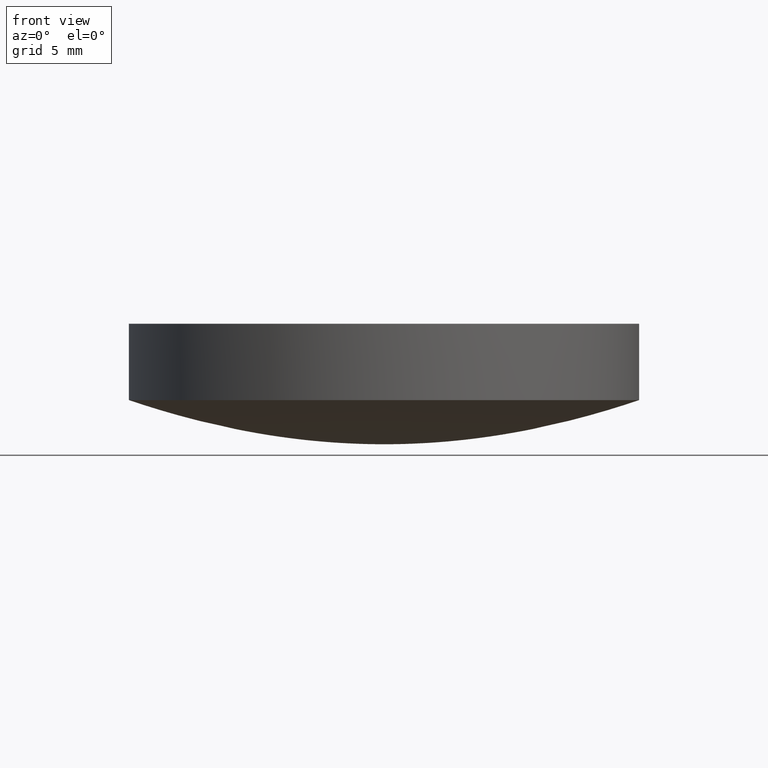
[diagram: clean part render]
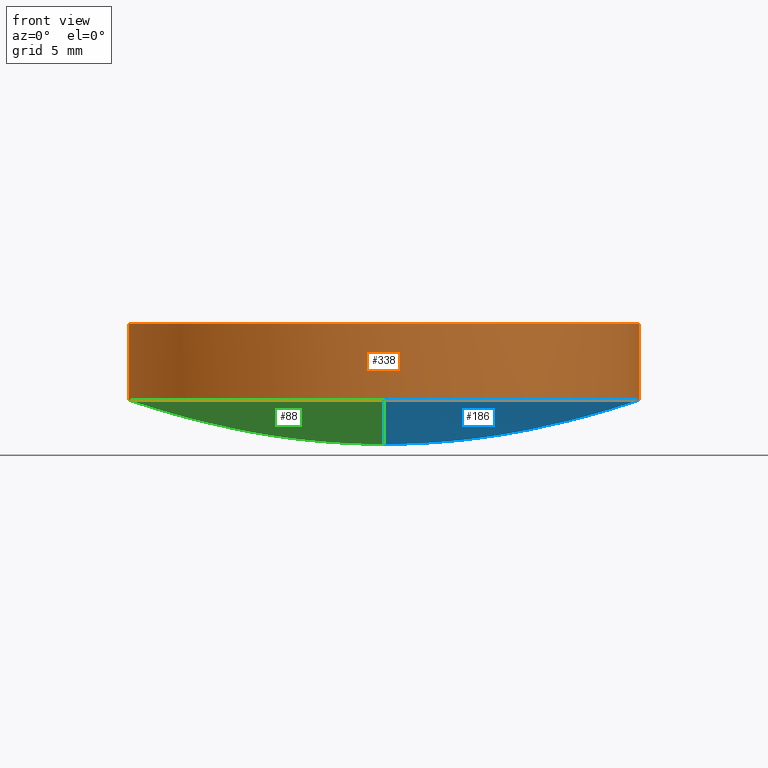
[diagram: same view with three faces highlighted in distinct colors, each labeled with its STEP entity id]
A machine part, front view with three faces highlighted in distinct colors.
Their STEP definitions:

[orange] entity #338 — the highlighted cylindrical surface (partial cylindrical patch) has radius 12.7 mm, axis along (0, 0, 1).
#44 = VERTEX_POINT ( 'NONE', #263 ) ;
#52 = CARTESIAN_POINT ( 'NONE',  ( 1.734723475976807094E-15, -1.345898117247522881E-15, 2.197451818612039975 ) ) ;
#53 = CARTESIAN_POINT ( 'NONE',  ( 12.70000000000000107, -8.881784197001250351E-16, 2.197451818612039087 ) ) ;
#62 = DIRECTION ( 'NONE',  ( 6.993530863780509846E-17, 4.890947394265059749E-33, 1.000000000000000000 ) ) ;
#73 = EDGE_CURVE ( 'NONE', #219, #216, #447, .T. ) ;
#75 = ORIENTED_EDGE ( 'NONE', *, *, #424, .T. ) ;
#117 = CARTESIAN_POINT ( 'NONE',  ( -1.555301434917141588E-15, -12.70000000000000462, 2.197451818612039975 ) ) ;
#120 = VECTOR ( 'NONE', #389, 1000.000000000000000 ) ;
#146 = LINE ( 'NONE', #53, #120 ) ;
#157 = VERTEX_POINT ( 'NONE', #350 ) ;
#167 = EDGE_CURVE ( 'NONE', #227, #157, #268, .T. ) ;
#176 = CARTESIAN_POINT ( 'NONE',  ( 8.881784197001250351E-16, -8.881784197001250351E-16, 2.197451818612039975 ) ) ;
#182 = VECTOR ( 'NONE', #62, 1000.000000000000000 ) ;
#216 = VERTEX_POINT ( 'NONE', #503 ) ;
#218 = DIRECTION ( 'NONE',  ( 1.000000000000000000, 0.000000000000000000, -6.829619984160658046E-17 ) ) ;
#219 = VERTEX_POINT ( 'NONE', #117 ) ;
#220 = AXIS2_PLACEMENT_3D ( 'NONE', #176, #277, #274 ) ;
#225 = DIRECTION ( 'NONE',  ( -0.000000000000000000, -0.000000000000000000, -1.000000000000000000 ) ) ;
#227 = VERTEX_POINT ( 'NONE', #357 ) ;
#240 = AXIS2_PLACEMENT_3D ( 'NONE', #308, #257, #218 ) ;
#257 = DIRECTION ( 'NONE',  ( -6.993530863780509846E-17, -4.890947394265059749E-33, -1.000000000000000000 ) ) ;
#263 = CARTESIAN_POINT ( 'NONE',  ( 12.70000000000000462, -8.881784197001248379E-16, 2.197451818612039975 ) ) ;
#264 = CARTESIAN_POINT ( 'NONE',  ( 1.734723475976807094E-15, -1.345898117247522881E-15, 2.197451818612039975 ) ) ;
#267 = LINE ( 'NONE', #438, #182 ) ;
#268 = CIRCLE ( 'NONE', #240, 12.69999999999999929 ) ;
#274 = DIRECTION ( 'NONE',  ( 1.000000000000000000, 0.000000000000000000, -6.829619984160658046E-17 ) ) ;
#277 = DIRECTION ( 'NONE',  ( 6.993530863780509846E-17, 4.890947394265059749E-33, 1.000000000000000000 ) ) ;
#289 = EDGE_LOOP ( 'NONE', ( #497, #416, #505, #75, #472 ) ) ;
#307 = CYLINDRICAL_SURFACE ( 'NONE', #220, 12.69999999999999929 ) ;
#308 = CARTESIAN_POINT ( 'NONE',  ( 1.154110800375616501E-15, -8.881784197001250351E-16, 5.999999999999999112 ) ) ;
#310 = FACE_OUTER_BOUND ( 'NONE', #289, .T. ) ;
#320 = AXIS2_PLACEMENT_3D ( 'NONE', #52, #476, #391 ) ;
#337 = AXIS2_PLACEMENT_3D ( 'NONE', #264, #225, #430 ) ;
#338 = ADVANCED_FACE ( 'NONE', ( #310 ), #307, .T. ) ;
#350 = CARTESIAN_POINT ( 'NONE',  ( -12.69999999999999751, 6.671230152170134961E-16, 6.000000000000000000 ) ) ;
#357 = CARTESIAN_POINT ( 'NONE',  ( 12.70000000000000107, -8.881784197001250351E-16, 5.999999999999998224 ) ) ;
#384 = EDGE_CURVE ( 'NONE', #44, #219, #421, .T. ) ;
#389 = DIRECTION ( 'NONE',  ( 6.993530863780509846E-17, 4.890947394265059749E-33, 1.000000000000000000 ) ) ;
#391 = DIRECTION ( 'NONE',  ( -1.000000000000000000, 0.000000000000000000, 0.000000000000000000 ) ) ;
#407 = EDGE_CURVE ( 'NONE', #216, #157, #267, .T. ) ;
#416 = ORIENTED_EDGE ( 'NONE', *, *, #73, .F. ) ;
#421 = CIRCLE ( 'NONE', #337, 12.70000000000000284 ) ;
#424 = EDGE_CURVE ( 'NONE', #44, #227, #146, .T. ) ;
#430 = DIRECTION ( 'NONE',  ( -1.000000000000000000, 0.000000000000000000, 0.000000000000000000 ) ) ;
#438 = CARTESIAN_POINT ( 'NONE',  ( -12.69999999999999751, 6.671230152170134961E-16, 2.197451818612040864 ) ) ;
#447 = CIRCLE ( 'NONE', #320, 12.70000000000000284 ) ;
#472 = ORIENTED_EDGE ( 'NONE', *, *, #167, .T. ) ;
#476 = DIRECTION ( 'NONE',  ( -0.000000000000000000, -0.000000000000000000, -1.000000000000000000 ) ) ;
#497 = ORIENTED_EDGE ( 'NONE', *, *, #407, .F. ) ;
#503 = CARTESIAN_POINT ( 'NONE',  ( -12.70000000000000107, 6.671230152170136933E-16, 2.197451818612039975 ) ) ;
#505 = ORIENTED_EDGE ( 'NONE', *, *, #384, .F. ) ;

[blue] entity #186 — the highlighted face is a freeform B-spline surface patch.
#2 = CARTESIAN_POINT ( 'NONE',  ( -0.2646482014919789849, 1.620502864286280123E-17, 0.000000000000000000 ) ) ;
#4 = CARTESIAN_POINT ( 'NONE',  ( 0.9709166173007770517, -0.9709166173007780509, 0.007826623216660751406 ) ) ;
#5 = EDGE_CURVE ( 'NONE', #219, #155, #123, .T. ) ;
#7 = CARTESIAN_POINT ( 'NONE',  ( -1.853068808560519809, 1.853068808560519809, 0.04368035160071269407 ) ) ;
#8 = CARTESIAN_POINT ( 'NONE',  ( -11.12050896531349942, 11.12050896531349942, 1.686076382450860001 ) ) ;
#9 = ORIENTED_EDGE ( 'NONE', *, *, #5, .T. ) ;
#11 = CARTESIAN_POINT ( 'NONE',  ( 0.000000000000000000, 9.881579680847279334, 1.340326071960550092 ) ) ;
#12 = CARTESIAN_POINT ( 'NONE',  ( -5.402905364136339613E-16, -4.411807035218689776, 0.2678392450587179785 ) ) ;
#13 = CARTESIAN_POINT ( 'NONE',  ( 0.000000000000000000, 1.853068808560520031, 0.04368035160071270101 ) ) ;
#15 = CARTESIAN_POINT ( 'NONE',  ( -1.210144492666909909E-15, -9.881579680847279334, 1.340326071960550092 ) ) ;
#17 = DIRECTION ( 'NONE',  ( -1.000000000000000000, 0.000000000000000000, 0.000000000000000000 ) ) ;
#18 = CARTESIAN_POINT ( 'NONE',  ( -9.881579680847279334, 6.050722463334570254E-16, 1.340326071960550092 ) ) ;
#19 = CARTESIAN_POINT ( 'NONE',  ( -1.189029927616370324E-16, -0.9709166173007780509, 0.007826623216660749671 ) ) ;
#20 = CARTESIAN_POINT ( 'NONE',  ( 0.000000000000000000, 4.411807035218689776, 0.2678392450587179785 ) ) ;
#21 = CARTESIAN_POINT ( 'NONE',  ( 11.12050896531349942, 11.12050896531349942, 1.686076382450860001 ) ) ;
#23 = CARTESIAN_POINT ( 'NONE',  ( -9.292616622705699954E-16, -7.587997314144440786, 0.7937850246568419754 ) ) ;
#27 = DIRECTION ( 'NONE',  ( -0.000000000000000000, -0.000000000000000000, -1.000000000000000000 ) ) ;
#32 = CARTESIAN_POINT ( 'NONE',  ( 0.000000000000000000, 5.999939165251210405, 0.4967461427249240669 ) ) ;
#34 = CARTESIAN_POINT ( 'NONE',  ( -5.117495180305819957, 5.117495180305819957, 0.3610946254766859709 ) ) ;
#36 = CARTESIAN_POINT ( 'NONE',  ( 5.117495180305819957, 5.117495180305819957, 0.3610946254766859709 ) ) ;
#39 = CARTESIAN_POINT ( 'NONE',  ( -0.9709166173007780509, -0.9709166173007770517, 0.007826623216660751406 ) ) ;
#41 = CARTESIAN_POINT ( 'NONE',  ( -1.189029927616370324E-16, -0.9709166173007780509, 0.007826623216660749671 ) ) ;
#44 = VERTEX_POINT ( 'NONE', #263 ) ;
#45 = CARTESIAN_POINT ( 'NONE',  ( 0.000000000000000000, 0.000000000000000000, 0.000000000000000000 ) ) ;
#46 = CARTESIAN_POINT ( 'NONE',  ( 0.000000000000000000, 9.175968922900919367, 1.157604965641559902 ) ) ;
#47 = CARTESIAN_POINT ( 'NONE',  ( 0.000000000000000000, 2.823615539499820137, 0.1081007503329499964 ) ) ;
#48 = CARTESIAN_POINT ( 'NONE',  ( 11.12050896531349942, -11.12050896531349942, 1.686076382450860001 ) ) ;
#50 = CARTESIAN_POINT ( 'NONE',  ( 2.823615539499820581, 2.823615539499820581, 0.1081007503329500102 ) ) ;
#51 = CARTESIAN_POINT ( 'NONE',  ( 0.000000000000000000, 8.293636240054830466, 0.9473380225862650938 ) ) ;
#54 = CARTESIAN_POINT ( 'NONE',  ( 8.293636240054830466, -1.523516261201350195E-15, 0.9473380225862650938 ) ) ;
#55 = ORIENTED_EDGE ( 'NONE', *, *, #489, .F. ) ;
#56 = CARTESIAN_POINT ( 'NONE',  ( 0.000000000000000000, 9.881579680847279334, 1.340326071960550092 ) ) ;
#57 = CARTESIAN_POINT ( 'NONE',  ( -12.69999999999999929, -12.69999999999999929, 2.197451818612039975 ) ) ;
#59 = CARTESIAN_POINT ( 'NONE',  ( 0.000000000000000000, 0.9709166173007780509, 0.007826623216660749671 ) ) ;
#60 = CARTESIAN_POINT ( 'NONE',  ( -5.402905364136339613E-16, -4.411807035218689776, 0.2678392450587179785 ) ) ;
#68 = CARTESIAN_POINT ( 'NONE',  ( 0.000000000000000000, 6.705604643652271157, 0.6204309067409240486 ) ) ;
#70 = B_SPLINE_CURVE_WITH_KNOTS ( 'NONE', 3,
 ( #392, #230, #228, #56, #222, #397, #474, #94, #433, #359, #20, #179, #354, #318, #59, #523, #313 ),
 .UNSPECIFIED., .F., .F.,
 ( 4, 1, 1, 1, 1, 1, 1, 1, 1, 1, 1, 1, 1, 1, 4 ),
 ( 0.000000000000000000, 0.1711261176727990052, 0.2135614419187649993, 0.2980152312877710208, 0.3400336964108119919, 0.4237076803100590094, 0.4653631990862669987, 0.5483733313384220320, 0.5897279448143709635, 0.6722051610619159678, 0.7133277638335130399, 0.7954152136409540219, 0.8363800606767990420, 0.9386724538563220310, 1.000000000000000000 ),
 .UNSPECIFIED. ) ;
#71 = CARTESIAN_POINT ( 'NONE',  ( 0.000000000000000000, 5.117495180305819957, 0.3610946254766860264 ) ) ;
#76 = CARTESIAN_POINT ( 'NONE',  ( 0.000000000000000000, 7.587997314144440786, 0.7937850246568419754 ) ) ;
#78 = CARTESIAN_POINT ( 'NONE',  ( 2.823615539499820137, -5.186897598706770001E-16, 0.1081007503329499964 ) ) ;
#80 = CARTESIAN_POINT ( 'NONE',  ( -2.823615539499820581, 2.823615539499820581, 0.1081007503329500102 ) ) ;
#82 = CARTESIAN_POINT ( 'NONE',  ( 0.000000000000000000, 0.2646482014919789849, 0.000000000000000000 ) ) ;
#84 = CARTESIAN_POINT ( 'NONE',  ( -3.529323060183089833, 2.161087094405080064E-16, 0.1705053634074680247 ) ) ;
#85 = CARTESIAN_POINT ( 'NONE',  ( 0.000000000000000000, 11.12050896531350119, 1.686076382450860001 ) ) ;
#86 = CARTESIAN_POINT ( 'NONE',  ( -3.457931732471180000E-16, -2.823615539499820137, 0.1081007503329499964 ) ) ;
#87 = CARTESIAN_POINT ( 'NONE',  ( 0.000000000000000000, 0.000000000000000000, 0.000000000000000000 ) ) ;
#89 = CARTESIAN_POINT ( 'NONE',  ( 9.175968922900919367, -1.685598145575929948E-15, 1.157604965641559902 ) ) ;
#91 = CARTESIAN_POINT ( 'NONE',  ( -3.851859888774471706E-31, 12.70000000000000284, 2.197451818612039975 ) ) ;
#92 = CARTESIAN_POINT ( 'NONE',  ( -1.015677507467560091E-15, -8.293636240054830466, 0.9473380225862650938 ) ) ;
#93 = CARTESIAN_POINT ( 'NONE',  ( -1.361869570926060046E-15, -11.12050896531350119, 1.686076382450860001 ) ) ;
#94 = CARTESIAN_POINT ( 'NONE',  ( 0.000000000000000000, 6.705604643652271157, 0.6204309067409240486 ) ) ;
#95 = CARTESIAN_POINT ( 'NONE',  ( -11.12050896531349942, -11.12050896531349942, 1.686076382450860001 ) ) ;
#98 = CARTESIAN_POINT ( 'NONE',  ( -4.411807035218689776, 4.411807035218689776, 0.2678392450587179230 ) ) ;
#109 = CARTESIAN_POINT ( 'NONE',  ( -5.999939165251210405, 3.673903146901869911E-16, 0.4967461427249240669 ) ) ;
#113 = CARTESIAN_POINT ( 'NONE',  ( 0.000000000000000000, 4.411807035218689776, 0.2678392450587179785 ) ) ;
#117 = CARTESIAN_POINT ( 'NONE',  ( -1.555301434917141588E-15, -12.70000000000000462, 2.197451818612039975 ) ) ;
#122 = CARTESIAN_POINT ( 'NONE',  ( 0.000000000000000000, 3.529323060183089833, 0.1705053634074680247 ) ) ;
#123 = B_SPLINE_CURVE_WITH_KNOTS ( 'NONE', 3,
 ( #520, #383, #93, #170, #388, #514, #273, #432, #266, #224, #12, #478, #86, #260, #19, #356, #142 ),
 .UNSPECIFIED., .F., .F.,
 ( 4, 1, 1, 1, 1, 1, 1, 1, 1, 1, 1, 1, 1, 1, 4 ),
 ( 0.000000000000000000, 0.1711261176727990052, 0.2135614419187649993, 0.2980152312877710208, 0.3400336964108119919, 0.4237076803100590094, 0.4653631990862669987, 0.5483733313384220320, 0.5897279448143709635, 0.6722051610619159678, 0.7133277638335130399, 0.7954152136409540219, 0.8363800606767990420, 0.9386724538563220310, 1.000000000000000000 ),
 .UNSPECIFIED. ) ;
#125 = CARTESIAN_POINT ( 'NONE',  ( -1.853068808560520031, 1.134677392501719920E-16, 0.04368035160071270101 ) ) ;
#127 = CARTESIAN_POINT ( 'NONE',  ( -3.457931732471180000E-16, -2.823615539499820137, 0.1081007503329499964 ) ) ;
#128 = CARTESIAN_POINT ( 'NONE',  ( 12.69999999999999929, -12.69999999999999929, 2.197451818612039975 ) ) ;
#132 = CARTESIAN_POINT ( 'NONE',  ( 0.000000000000000000, 3.529323060183089833, 0.1705053634074680247 ) ) ;
#135 = CARTESIAN_POINT ( 'NONE',  ( -1.361869570926060046E-15, -11.12050896531350119, 1.686076382450860001 ) ) ;
#137 = CARTESIAN_POINT ( 'NONE',  ( -8.293636240054828690, -8.293636240054828690, 0.9473380225862649828 ) ) ;
#139 = CARTESIAN_POINT ( 'NONE',  ( 0.000000000000000000, 7.587997314144440786, 0.7937850246568419754 ) ) ;
#141 = CARTESIAN_POINT ( 'NONE',  ( 0.000000000000000000, 11.12050896531350119, 1.686076382450860001 ) ) ;
#142 = CARTESIAN_POINT ( 'NONE',  ( 0.000000000000000000, 0.000000000000000000, 0.000000000000000000 ) ) ;
#144 = CARTESIAN_POINT ( 'NONE',  ( -6.705604643652271157, 6.705604643652271157, 0.6204309067409240486 ) ) ;
#155 = VERTEX_POINT ( 'NONE', #265 ) ;
#158 = CARTESIAN_POINT ( 'NONE',  ( 0.000000000000000000, 2.823615539499820137, 0.1081007503329499964 ) ) ;
#161 = CARTESIAN_POINT ( 'NONE',  ( 0.000000000000000000, 0.9709166173007780509, 0.007826623216660749671 ) ) ;
#164 = CARTESIAN_POINT ( 'NONE',  ( 0.000000000000000000, 0.2646482014919789849, 0.000000000000000000 ) ) ;
#165 = FACE_OUTER_BOUND ( 'NONE', #502, .T. ) ;
#168 = CARTESIAN_POINT ( 'NONE',  ( 1.853068808560519809, 1.853068808560519809, 0.04368035160071269407 ) ) ;
#169 = CARTESIAN_POINT ( 'NONE',  ( -9.175968922900919367, 5.618660485253100484E-16, 1.157604965641559902 ) ) ;
#170 = CARTESIAN_POINT ( 'NONE',  ( -1.210144492666909909E-15, -9.881579680847279334, 1.340326071960550092 ) ) ;
#174 = CARTESIAN_POINT ( 'NONE',  ( -8.293636240054828690, 8.293636240054828690, 0.9473380225862649828 ) ) ;
#177 = CARTESIAN_POINT ( 'NONE',  ( 8.293636240054828690, 8.293636240054828690, 0.9473380225862649828 ) ) ;
#179 = CARTESIAN_POINT ( 'NONE',  ( 0.000000000000000000, 3.529323060183089833, 0.1705053634074680247 ) ) ;
#180 = CARTESIAN_POINT ( 'NONE',  ( 12.00034429507980072, -2.204427484445339934E-15, 1.961206610540939810 ) ) ;
#183 = CARTESIAN_POINT ( 'NONE',  ( 7.587997314144440786, -7.587997314144440786, 0.7937850246568420864 ) ) ;
#186 = ADVANCED_FACE ( 'NONE', ( #165 ), #233, .T. ) ;
#190 = CARTESIAN_POINT ( 'NONE',  ( 5.999939165251210405, -1.102170944070560086E-15, 0.4967461427249240669 ) ) ;
#194 = CARTESIAN_POINT ( 'NONE',  ( 0.000000000000000000, 6.705604643652271157, 0.6204309067409240486 ) ) ;
#197 = CARTESIAN_POINT ( 'NONE',  ( 5.117495180305819957, -9.400686138320300585E-16, 0.3610946254766860264 ) ) ;
#202 = CARTESIAN_POINT ( 'NONE',  ( 0.000000000000000000, 0.000000000000000000, 0.000000000000000000 ) ) ;
#205 = CARTESIAN_POINT ( 'NONE',  ( -4.322174188810160128E-16, -3.529323060183089833, 0.1705053634074680247 ) ) ;
#207 = CIRCLE ( 'NONE', #482, 12.70000000000000284 ) ;
#210 = CARTESIAN_POINT ( 'NONE',  ( 2.823615539499820581, -2.823615539499820581, 0.1081007503329500102 ) ) ;
#212 = CARTESIAN_POINT ( 'NONE',  ( 12.69999999999999929, -2.332952152375710015E-15, 2.197451818612039975 ) ) ;
#214 = CARTESIAN_POINT ( 'NONE',  ( 0.000000000000000000, 0.9709166173007780509, 0.007826623216660749671 ) ) ;
#215 = CARTESIAN_POINT ( 'NONE',  ( 0.000000000000000000, 9.881579680847279334, 1.340326071960550092 ) ) ;
#217 = CARTESIAN_POINT ( 'NONE',  ( -2.823615539499820137, 1.728965866235590000E-16, 0.1081007503329499964 ) ) ;
#219 = VERTEX_POINT ( 'NONE', #117 ) ;
#222 = CARTESIAN_POINT ( 'NONE',  ( 0.000000000000000000, 9.175968922900919367, 1.157604965641559902 ) ) ;
#223 = CARTESIAN_POINT ( 'NONE',  ( 12.00034429507980072, 12.00034429507980072, 1.961206610540939588 ) ) ;
#224 = CARTESIAN_POINT ( 'NONE',  ( -6.267124092213530108E-16, -5.117495180305819957, 0.3610946254766860264 ) ) ;
#225 = DIRECTION ( 'NONE',  ( -0.000000000000000000, -0.000000000000000000, -1.000000000000000000 ) ) ;
#226 = CARTESIAN_POINT ( 'NONE',  ( -12.00034429507980072, 7.348091614817809970E-16, 1.961206610540939810 ) ) ;
#228 = CARTESIAN_POINT ( 'NONE',  ( 0.000000000000000000, 11.12050896531350119, 1.686076382450860001 ) ) ;
#229 = CARTESIAN_POINT ( 'NONE',  ( 4.411807035218680006, -4.411807035218689776, 0.2678392450587179230 ) ) ;
#230 = CARTESIAN_POINT ( 'NONE',  ( 0.000000000000000000, 12.00034429507980072, 1.961206610540939810 ) ) ;
#233 =( BOUNDED_SURFACE ( )  B_SPLINE_SURFACE ( 3, 2, ( 
 ( #344, #513, #259, #57, #390, #128, #212, #380, #475 ),
 ( #300, #477, #226, #525, #355, #467, #180, #223, #393 ),
 ( #85, #8, #425, #95, #135, #48, #422, #21, #141 ),
 ( #215, #314, #18, #262, #15, #352, #305, #382, #11 ),
 ( #46, #386, #169, #348, #517, #471, #89, #434, #428 ),
 ( #51, #174, #519, #137, #92, #431, #54, #177, #521 ),
 ( #139, #311, #269, #544, #23, #183, #495, #287, #76 ),
 ( #194, #144, #239, #444, #538, #395, #244, #322, #68 ),
 ( #32, #365, #109, #453, #499, #487, #190, #333, #491 ),
 ( #71, #34, #368, #326, #451, #409, #197, #36, #541 ),
 ( #113, #98, #272, #436, #60, #229, #461, #297, #381 ),
 ( #132, #376, #84, #379, #205, #291, #343, #507, #122 ),
 ( #47, #80, #217, #417, #127, #210, #78, #50, #158 ),
 ( #13, #7, #125, #469, #463, #466, #299, #168, #253 ),
 ( #214, #295, #414, #39, #41, #4, #303, #457, #161 ),
 ( #82, #256, #2, #420, #340, #509, #250, #385, #164 ),
 ( #45, #336, #261, #202, #374, #512, #87, #427, #258 ) ),
 .UNSPECIFIED., .F., .T., .T. ) 
 B_SPLINE_SURFACE_WITH_KNOTS ( ( 4, 1, 1, 1, 1, 1, 1, 1, 1, 1, 1, 1, 1, 1, 4 ),
 ( 3, 2, 2, 2, 3 ),
 ( 0.000000000000000000, 0.1711261176727990052, 0.2135614419187649993, 0.2980152312877710208, 0.3400336964108119919, 0.4237076803100590094, 0.4653631990862669987, 0.5483733313384220320, 0.5897279448143709635, 0.6722051610619159678, 0.7133277638335130399, 0.7954152136409540219, 0.8363800606767990420, 0.9386724538563220310, 1.000000000000000000 ),
 ( 0.000000000000000000, 90.00000000000000000, 180.0000000000000000, 270.0000000000000000, 360.0000000000000000 ),
 .UNSPECIFIED. ) 
 GEOMETRIC_REPRESENTATION_ITEM ( )  RATIONAL_B_SPLINE_SURFACE ( (
 ( 1.000000000000000000, 0.7071067811865480168, 1.000000000000000000, 0.7071067811865480168, 1.000000000000000000, 0.7071067811865480168, 1.000000000000000000, 0.7071067811865480168, 1.000000000000000000),
 ( 1.000000000000000000, 0.7071067811865480168, 1.000000000000000000, 0.7071067811865480168, 1.000000000000000000, 0.7071067811865480168, 1.000000000000000000, 0.7071067811865480168, 1.000000000000000000),
 ( 1.000000000000000000, 0.7071067811865480168, 1.000000000000000000, 0.7071067811865480168, 1.000000000000000000, 0.7071067811865480168, 1.000000000000000000, 0.7071067811865480168, 1.000000000000000000),
 ( 1.000000000000000000, 0.7071067811865480168, 1.000000000000000000, 0.7071067811865480168, 1.000000000000000000, 0.7071067811865480168, 1.000000000000000000, 0.7071067811865480168, 1.000000000000000000),
 ( 1.000000000000000000, 0.7071067811865480168, 1.000000000000000000, 0.7071067811865480168, 1.000000000000000000, 0.7071067811865480168, 1.000000000000000000, 0.7071067811865480168, 1.000000000000000000),
 ( 1.000000000000000000, 0.7071067811865480168, 1.000000000000000000, 0.7071067811865480168, 1.000000000000000000, 0.7071067811865480168, 1.000000000000000000, 0.7071067811865480168, 1.000000000000000000),
 ( 1.000000000000000000, 0.7071067811865480168, 1.000000000000000000, 0.7071067811865480168, 1.000000000000000000, 0.7071067811865480168, 1.000000000000000000, 0.7071067811865480168, 1.000000000000000000),
 ( 1.000000000000000000, 0.7071067811865480168, 1.000000000000000000, 0.7071067811865480168, 1.000000000000000000, 0.7071067811865480168, 1.000000000000000000, 0.7071067811865480168, 1.000000000000000000),
 ( 1.000000000000000000, 0.7071067811865480168, 1.000000000000000000, 0.7071067811865480168, 1.000000000000000000, 0.7071067811865480168, 1.000000000000000000, 0.7071067811865480168, 1.000000000000000000),
 ( 1.000000000000000000, 0.7071067811865480168, 1.000000000000000000, 0.7071067811865480168, 1.000000000000000000, 0.7071067811865480168, 1.000000000000000000, 0.7071067811865480168, 1.000000000000000000),
 ( 1.000000000000000000, 0.7071067811865480168, 1.000000000000000000, 0.7071067811865480168, 1.000000000000000000, 0.7071067811865480168, 1.000000000000000000, 0.7071067811865480168, 1.000000000000000000),
 ( 1.000000000000000000, 0.7071067811865480168, 1.000000000000000000, 0.7071067811865480168, 1.000000000000000000, 0.7071067811865480168, 1.000000000000000000, 0.7071067811865480168, 1.000000000000000000),
 ( 1.000000000000000000, 0.7071067811865480168, 1.000000000000000000, 0.7071067811865480168, 1.000000000000000000, 0.7071067811865480168, 1.000000000000000000, 0.7071067811865480168, 1.000000000000000000),
 ( 1.000000000000000000, 0.7071067811865480168, 1.000000000000000000, 0.7071067811865480168, 1.000000000000000000, 0.7071067811865480168, 1.000000000000000000, 0.7071067811865480168, 1.000000000000000000),
 ( 1.000000000000000000, 0.7071067811865480168, 1.000000000000000000, 0.7071067811865480168, 1.000000000000000000, 0.7071067811865480168, 1.000000000000000000, 0.7071067811865480168, 1.000000000000000000),
 ( 1.000000000000000000, 0.7071067811865480168, 1.000000000000000000, 0.7071067811865480168, 1.000000000000000000, 0.7071067811865480168, 1.000000000000000000, 0.7071067811865480168, 1.000000000000000000),
 ( 1.000000000000000000, 0.7071067811865480168, 1.000000000000000000, 0.7071067811865480168, 1.000000000000000000, 0.7071067811865480168, 1.000000000000000000, 0.7071067811865480168, 1.000000000000000000) ) ) 
 REPRESENTATION_ITEM ( '' )  SURFACE ( )  );
#238 = EDGE_CURVE ( 'NONE', #372, #44, #207, .T. ) ;
#239 = CARTESIAN_POINT ( 'NONE',  ( -6.705604643652271157, 4.105998631598190199E-16, 0.6204309067409240486 ) ) ;
#244 = CARTESIAN_POINT ( 'NONE',  ( 6.705604643652271157, -1.231799589479459969E-15, 0.6204309067409240486 ) ) ;
#250 = CARTESIAN_POINT ( 'NONE',  ( 0.2646482014919789849, -4.861508592858829892E-17, 0.000000000000000000 ) ) ;
#253 = CARTESIAN_POINT ( 'NONE',  ( 0.000000000000000000, 1.853068808560520031, 0.04368035160071270101 ) ) ;
#256 = CARTESIAN_POINT ( 'NONE',  ( -0.2646482014919789294, 0.2646482014919789294, 0.000000000000000000 ) ) ;
#258 = CARTESIAN_POINT ( 'NONE',  ( 0.000000000000000000, 0.000000000000000000, 0.000000000000000000 ) ) ;
#259 = CARTESIAN_POINT ( 'NONE',  ( -12.69999999999999929, 7.776507174585690191E-16, 2.197451818612039975 ) ) ;
#260 = CARTESIAN_POINT ( 'NONE',  ( -2.269354785003439840E-16, -1.853068808560520031, 0.04368035160071270101 ) ) ;
#261 = CARTESIAN_POINT ( 'NONE',  ( 0.000000000000000000, 0.000000000000000000, 0.000000000000000000 ) ) ;
#262 = CARTESIAN_POINT ( 'NONE',  ( -9.881579680847281111, -9.881579680847281111, 1.340326071960550092 ) ) ;
#263 = CARTESIAN_POINT ( 'NONE',  ( 12.70000000000000462, -8.881784197001248379E-16, 2.197451818612039975 ) ) ;
#264 = CARTESIAN_POINT ( 'NONE',  ( 1.734723475976807094E-15, -1.345898117247522881E-15, 2.197451818612039975 ) ) ;
#265 = CARTESIAN_POINT ( 'NONE',  ( 0.000000000000000000, 0.000000000000000000, 0.000000000000000000 ) ) ;
#266 = CARTESIAN_POINT ( 'NONE',  ( -7.347806293803730947E-16, -5.999939165251210405, 0.4967461427249240669 ) ) ;
#269 = CARTESIAN_POINT ( 'NONE',  ( -7.587997314144440786, 4.646308311352849977E-16, 0.7937850246568419754 ) ) ;
#272 = CARTESIAN_POINT ( 'NONE',  ( -4.411807035218689776, 2.701452682068169807E-16, 0.2678392450587179785 ) ) ;
#273 = CARTESIAN_POINT ( 'NONE',  ( -9.292616622705699954E-16, -7.587997314144440786, 0.7937850246568419754 ) ) ;
#287 = CARTESIAN_POINT ( 'NONE',  ( 7.587997314144440786, 7.587997314144440786, 0.7937850246568420864 ) ) ;
#291 = CARTESIAN_POINT ( 'NONE',  ( 3.529323060183090277, -3.529323060183090277, 0.1705053634074679969 ) ) ;
#295 = CARTESIAN_POINT ( 'NONE',  ( -0.9709166173007770517, 0.9709166173007780509, 0.007826623216660751406 ) ) ;
#297 = CARTESIAN_POINT ( 'NONE',  ( 4.411807035218689776, 4.411807035218680006, 0.2678392450587179230 ) ) ;
#299 = CARTESIAN_POINT ( 'NONE',  ( 1.853068808560520031, -3.404032177505150393E-16, 0.04368035160071270101 ) ) ;
#300 = CARTESIAN_POINT ( 'NONE',  ( 0.000000000000000000, 12.00034429507980072, 1.961206610540939810 ) ) ;
#301 = ORIENTED_EDGE ( 'NONE', *, *, #384, .T. ) ;
#303 = CARTESIAN_POINT ( 'NONE',  ( 0.9709166173007780509, -1.783544891424559924E-16, 0.007826623216660749671 ) ) ;
#305 = CARTESIAN_POINT ( 'NONE',  ( 9.881579680847279334, -1.815216739000370189E-15, 1.340326071960550092 ) ) ;
#311 = CARTESIAN_POINT ( 'NONE',  ( -7.587997314144440786, 7.587997314144440786, 0.7937850246568420864 ) ) ;
#313 = CARTESIAN_POINT ( 'NONE',  ( 0.000000000000000000, 0.000000000000000000, 0.000000000000000000 ) ) ;
#314 = CARTESIAN_POINT ( 'NONE',  ( -9.881579680847281111, 9.881579680847281111, 1.340326071960550092 ) ) ;
#318 = CARTESIAN_POINT ( 'NONE',  ( 0.000000000000000000, 1.853068808560520031, 0.04368035160071270101 ) ) ;
#322 = CARTESIAN_POINT ( 'NONE',  ( 6.705604643652271157, 6.705604643652271157, 0.6204309067409240486 ) ) ;
#326 = CARTESIAN_POINT ( 'NONE',  ( -5.117495180305819957, -5.117495180305819957, 0.3610946254766859709 ) ) ;
#333 = CARTESIAN_POINT ( 'NONE',  ( 5.999939165251211293, 5.999939165251200635, 0.4967461427249240669 ) ) ;
#336 = CARTESIAN_POINT ( 'NONE',  ( 0.000000000000000000, 0.000000000000000000, 0.000000000000000000 ) ) ;
#337 = AXIS2_PLACEMENT_3D ( 'NONE', #264, #225, #430 ) ;
#340 = CARTESIAN_POINT ( 'NONE',  ( -3.241005728572560246E-17, -0.2646482014919789849, 0.000000000000000000 ) ) ;
#343 = CARTESIAN_POINT ( 'NONE',  ( 3.529323060183089833, -6.483261283215241177E-16, 0.1705053634074680247 ) ) ;
#344 = CARTESIAN_POINT ( 'NONE',  ( 0.000000000000000000, 12.69999999999999929, 2.197451818612039975 ) ) ;
#348 = CARTESIAN_POINT ( 'NONE',  ( -9.175968922900919367, -9.175968922900919367, 1.157604965641559902 ) ) ;
#352 = CARTESIAN_POINT ( 'NONE',  ( 9.881579680847281111, -9.881579680847281111, 1.340326071960550092 ) ) ;
#354 = CARTESIAN_POINT ( 'NONE',  ( 0.000000000000000000, 2.823615539499820137, 0.1081007503329499964 ) ) ;
#355 = CARTESIAN_POINT ( 'NONE',  ( -1.469618322963560219E-15, -12.00034429507980072, 1.961206610540939810 ) ) ;
#356 = CARTESIAN_POINT ( 'NONE',  ( -3.241005728572560246E-17, -0.2646482014919789849, 0.000000000000000000 ) ) ;
#359 = CARTESIAN_POINT ( 'NONE',  ( 0.000000000000000000, 5.117495180305819957, 0.3610946254766860264 ) ) ;
#365 = CARTESIAN_POINT ( 'NONE',  ( -5.999939165251211293, 5.999939165251211293, 0.4967461427249240669 ) ) ;
#368 = CARTESIAN_POINT ( 'NONE',  ( -5.117495180305819957, 3.133562046106770477E-16, 0.3610946254766860264 ) ) ;
#372 = VERTEX_POINT ( 'NONE', #91 ) ;
#374 = CARTESIAN_POINT ( 'NONE',  ( 0.000000000000000000, 0.000000000000000000, 0.000000000000000000 ) ) ;
#376 = CARTESIAN_POINT ( 'NONE',  ( -3.529323060183090277, 3.529323060183090277, 0.1705053634074679969 ) ) ;
#379 = CARTESIAN_POINT ( 'NONE',  ( -3.529323060183090277, -3.529323060183090277, 0.1705053634074679969 ) ) ;
#380 = CARTESIAN_POINT ( 'NONE',  ( 12.69999999999999929, 12.69999999999999929, 2.197451818612039975 ) ) ;
#381 = CARTESIAN_POINT ( 'NONE',  ( 0.000000000000000000, 4.411807035218689776, 0.2678392450587179785 ) ) ;
#382 = CARTESIAN_POINT ( 'NONE',  ( 9.881579680847281111, 9.881579680847281111, 1.340326071960550092 ) ) ;
#383 = CARTESIAN_POINT ( 'NONE',  ( -1.469618322963560219E-15, -12.00034429507980072, 1.961206610540939810 ) ) ;
#384 = EDGE_CURVE ( 'NONE', #44, #219, #421, .T. ) ;
#385 = CARTESIAN_POINT ( 'NONE',  ( 0.2646482014919789294, 0.2646482014919789294, 0.000000000000000000 ) ) ;
#386 = CARTESIAN_POINT ( 'NONE',  ( -9.175968922900919367, 9.175968922900919367, 1.157604965641559902 ) ) ;
#388 = CARTESIAN_POINT ( 'NONE',  ( -1.123732097050620097E-15, -9.175968922900919367, 1.157604965641559902 ) ) ;
#390 = CARTESIAN_POINT ( 'NONE',  ( -1.555301434917140010E-15, -12.69999999999999929, 2.197451818612039975 ) ) ;
#392 = CARTESIAN_POINT ( 'NONE',  ( -3.851859888774471706E-31, 12.70000000000000284, 2.197451818612039975 ) ) ;
#393 = CARTESIAN_POINT ( 'NONE',  ( 0.000000000000000000, 12.00034429507980072, 1.961206610540939810 ) ) ;
#395 = CARTESIAN_POINT ( 'NONE',  ( 6.705604643652271157, -6.705604643652271157, 0.6204309067409240486 ) ) ;
#397 = CARTESIAN_POINT ( 'NONE',  ( 0.000000000000000000, 8.293636240054830466, 0.9473380225862650938 ) ) ;
#399 = CARTESIAN_POINT ( 'NONE',  ( 1.734723475976807094E-15, -1.345898117247522881E-15, 2.197451818612039975 ) ) ;
#409 = CARTESIAN_POINT ( 'NONE',  ( 5.117495180305819957, -5.117495180305819957, 0.3610946254766859709 ) ) ;
#414 = CARTESIAN_POINT ( 'NONE',  ( -0.9709166173007780509, 5.945149638081860249E-17, 0.007826623216660749671 ) ) ;
#417 = CARTESIAN_POINT ( 'NONE',  ( -2.823615539499820581, -2.823615539499820581, 0.1081007503329500102 ) ) ;
#420 = CARTESIAN_POINT ( 'NONE',  ( -0.2646482014919789294, -0.2646482014919789294, 0.000000000000000000 ) ) ;
#421 = CIRCLE ( 'NONE', #337, 12.70000000000000284 ) ;
#422 = CARTESIAN_POINT ( 'NONE',  ( 11.12050896531350119, -2.042804356389100028E-15, 1.686076382450860001 ) ) ;
#425 = CARTESIAN_POINT ( 'NONE',  ( -11.12050896531350119, 6.809347854630319951E-16, 1.686076382450860001 ) ) ;
#427 = CARTESIAN_POINT ( 'NONE',  ( 0.000000000000000000, 0.000000000000000000, 0.000000000000000000 ) ) ;
#428 = CARTESIAN_POINT ( 'NONE',  ( 0.000000000000000000, 9.175968922900919367, 1.157604965641559902 ) ) ;
#430 = DIRECTION ( 'NONE',  ( -1.000000000000000000, 0.000000000000000000, 0.000000000000000000 ) ) ;
#431 = CARTESIAN_POINT ( 'NONE',  ( 8.293636240054828690, -8.293636240054828690, 0.9473380225862649828 ) ) ;
#432 = CARTESIAN_POINT ( 'NONE',  ( -8.211997263196380398E-16, -6.705604643652271157, 0.6204309067409240486 ) ) ;
#433 = CARTESIAN_POINT ( 'NONE',  ( 0.000000000000000000, 5.999939165251210405, 0.4967461427249240669 ) ) ;
#434 = CARTESIAN_POINT ( 'NONE',  ( 9.175968922900928249, 9.175968922900919367, 1.157604965641559902 ) ) ;
#436 = CARTESIAN_POINT ( 'NONE',  ( -4.411807035218689776, -4.411807035218680006, 0.2678392450587179230 ) ) ;
#444 = CARTESIAN_POINT ( 'NONE',  ( -6.705604643652271157, -6.705604643652271157, 0.6204309067409240486 ) ) ;
#451 = CARTESIAN_POINT ( 'NONE',  ( -6.267124092213530108E-16, -5.117495180305819957, 0.3610946254766860264 ) ) ;
#453 = CARTESIAN_POINT ( 'NONE',  ( -5.999939165251211293, -5.999939165251200635, 0.4967461427249240669 ) ) ;
#455 = ORIENTED_EDGE ( 'NONE', *, *, #238, .T. ) ;
#457 = CARTESIAN_POINT ( 'NONE',  ( 0.9709166173007780509, 0.9709166173007770517, 0.007826623216660751406 ) ) ;
#461 = CARTESIAN_POINT ( 'NONE',  ( 4.411807035218689776, -8.104358046204509913E-16, 0.2678392450587179785 ) ) ;
#463 = CARTESIAN_POINT ( 'NONE',  ( -2.269354785003439840E-16, -1.853068808560520031, 0.04368035160071270101 ) ) ;
#466 = CARTESIAN_POINT ( 'NONE',  ( 1.853068808560519809, -1.853068808560519809, 0.04368035160071269407 ) ) ;
#467 = CARTESIAN_POINT ( 'NONE',  ( 12.00034429507980072, -12.00034429507980072, 1.961206610540939588 ) ) ;
#469 = CARTESIAN_POINT ( 'NONE',  ( -1.853068808560519809, -1.853068808560519809, 0.04368035160071269407 ) ) ;
#471 = CARTESIAN_POINT ( 'NONE',  ( 9.175968922900919367, -9.175968922900928249, 1.157604965641559902 ) ) ;
#474 = CARTESIAN_POINT ( 'NONE',  ( 0.000000000000000000, 7.587997314144440786, 0.7937850246568419754 ) ) ;
#475 = CARTESIAN_POINT ( 'NONE',  ( 0.000000000000000000, 12.69999999999999929, 2.197451818612039975 ) ) ;
#477 = CARTESIAN_POINT ( 'NONE',  ( -12.00034429507980072, 12.00034429507980072, 1.961206610540939588 ) ) ;
#478 = CARTESIAN_POINT ( 'NONE',  ( -4.322174188810160128E-16, -3.529323060183089833, 0.1705053634074680247 ) ) ;
#482 = AXIS2_PLACEMENT_3D ( 'NONE', #399, #27, #17 ) ;
#487 = CARTESIAN_POINT ( 'NONE',  ( 5.999939165251200635, -5.999939165251211293, 0.4967461427249240669 ) ) ;
#489 = EDGE_CURVE ( 'NONE', #372, #155, #70, .T. ) ;
#491 = CARTESIAN_POINT ( 'NONE',  ( 0.000000000000000000, 5.999939165251210405, 0.4967461427249240669 ) ) ;
#495 = CARTESIAN_POINT ( 'NONE',  ( 7.587997314144440786, -1.393892493405849964E-15, 0.7937850246568419754 ) ) ;
#499 = CARTESIAN_POINT ( 'NONE',  ( -7.347806293803730947E-16, -5.999939165251210405, 0.4967461427249240669 ) ) ;
#502 = EDGE_LOOP ( 'NONE', ( #301, #9, #55, #455 ) ) ;
#507 = CARTESIAN_POINT ( 'NONE',  ( 3.529323060183090277, 3.529323060183090277, 0.1705053634074679969 ) ) ;
#509 = CARTESIAN_POINT ( 'NONE',  ( 0.2646482014919789294, -0.2646482014919789294, 0.000000000000000000 ) ) ;
#512 = CARTESIAN_POINT ( 'NONE',  ( 0.000000000000000000, 0.000000000000000000, 0.000000000000000000 ) ) ;
#513 = CARTESIAN_POINT ( 'NONE',  ( -12.69999999999999929, 12.69999999999999929, 2.197451818612039975 ) ) ;
#514 = CARTESIAN_POINT ( 'NONE',  ( -1.015677507467560091E-15, -8.293636240054830466, 0.9473380225862650938 ) ) ;
#517 = CARTESIAN_POINT ( 'NONE',  ( -1.123732097050620097E-15, -9.175968922900919367, 1.157604965641559902 ) ) ;
#519 = CARTESIAN_POINT ( 'NONE',  ( -8.293636240054830466, 5.078387537337820178E-16, 0.9473380225862650938 ) ) ;
#520 = CARTESIAN_POINT ( 'NONE',  ( -1.555301434917141588E-15, -12.70000000000000462, 2.197451818612039975 ) ) ;
#521 = CARTESIAN_POINT ( 'NONE',  ( 0.000000000000000000, 8.293636240054830466, 0.9473380225862650938 ) ) ;
#523 = CARTESIAN_POINT ( 'NONE',  ( 0.000000000000000000, 0.2646482014919789849, 0.000000000000000000 ) ) ;
#525 = CARTESIAN_POINT ( 'NONE',  ( -12.00034429507980072, -12.00034429507980072, 1.961206610540939588 ) ) ;
#538 = CARTESIAN_POINT ( 'NONE',  ( -8.211997263196380398E-16, -6.705604643652271157, 0.6204309067409240486 ) ) ;
#541 = CARTESIAN_POINT ( 'NONE',  ( 0.000000000000000000, 5.117495180305819957, 0.3610946254766860264 ) ) ;
#544 = CARTESIAN_POINT ( 'NONE',  ( -7.587997314144440786, -7.587997314144440786, 0.7937850246568420864 ) ) ;

[green] entity #88 — the highlighted face is a freeform B-spline surface patch.
#3 = CARTESIAN_POINT ( 'NONE',  ( -0.9709166173007780509, -0.9709166173007770517, 0.007826623216660751406 ) ) ;
#5 = EDGE_CURVE ( 'NONE', #219, #155, #123, .T. ) ;
#6 = CARTESIAN_POINT ( 'NONE',  ( 4.411807035218680006, -4.411807035218689776, 0.2678392450587179230 ) ) ;
#12 = CARTESIAN_POINT ( 'NONE',  ( -5.402905364136339613E-16, -4.411807035218689776, 0.2678392450587179785 ) ) ;
#16 = CARTESIAN_POINT ( 'NONE',  ( -12.69999999999999929, 7.776507174585690191E-16, 2.197451818612039975 ) ) ;
#19 = CARTESIAN_POINT ( 'NONE',  ( -1.189029927616370324E-16, -0.9709166173007780509, 0.007826623216660749671 ) ) ;
#20 = CARTESIAN_POINT ( 'NONE',  ( 0.000000000000000000, 4.411807035218689776, 0.2678392450587179785 ) ) ;
#22 = CARTESIAN_POINT ( 'NONE',  ( -11.12050896531350119, 6.809347854630319951E-16, 1.686076382450860001 ) ) ;
#24 = CARTESIAN_POINT ( 'NONE',  ( 0.000000000000000000, 8.293636240054830466, 0.9473380225862650938 ) ) ;
#25 = DIRECTION ( 'NONE',  ( -1.000000000000000000, 0.000000000000000000, 0.000000000000000000 ) ) ;
#26 = CARTESIAN_POINT ( 'NONE',  ( 9.881579680847281111, -9.881579680847281111, 1.340326071960550092 ) ) ;
#28 = CARTESIAN_POINT ( 'NONE',  ( -8.293636240054828690, 8.293636240054828690, 0.9473380225862649828 ) ) ;
#30 = CARTESIAN_POINT ( 'NONE',  ( -5.117495180305819957, 5.117495180305819957, 0.3610946254766859709 ) ) ;
#33 = CARTESIAN_POINT ( 'NONE',  ( -5.117495180305819957, -5.117495180305819957, 0.3610946254766859709 ) ) ;
#35 = CARTESIAN_POINT ( 'NONE',  ( 0.000000000000000000, 0.000000000000000000, 0.000000000000000000 ) ) ;
#37 = CARTESIAN_POINT ( 'NONE',  ( 0.000000000000000000, 4.411807035218689776, 0.2678392450587179785 ) ) ;
#38 = CARTESIAN_POINT ( 'NONE',  ( 0.000000000000000000, 0.9709166173007780509, 0.007826623216660749671 ) ) ;
#40 = CARTESIAN_POINT ( 'NONE',  ( -1.853068808560519809, 1.853068808560519809, 0.04368035160071269407 ) ) ;
#43 = CARTESIAN_POINT ( 'NONE',  ( 0.000000000000000000, 5.117495180305819957, 0.3610946254766860264 ) ) ;
#49 = FACE_OUTER_BOUND ( 'NONE', #111, .T. ) ;
#52 = CARTESIAN_POINT ( 'NONE',  ( 1.734723475976807094E-15, -1.345898117247522881E-15, 2.197451818612039975 ) ) ;
#56 = CARTESIAN_POINT ( 'NONE',  ( 0.000000000000000000, 9.881579680847279334, 1.340326071960550092 ) ) ;
#58 = CARTESIAN_POINT ( 'NONE',  ( 0.000000000000000000, 12.00034429507980072, 1.961206610540939810 ) ) ;
#59 = CARTESIAN_POINT ( 'NONE',  ( 0.000000000000000000, 0.9709166173007780509, 0.007826623216660749671 ) ) ;
#63 = CARTESIAN_POINT ( 'NONE',  ( 8.293636240054828690, -8.293636240054828690, 0.9473380225862649828 ) ) ;
#64 = CARTESIAN_POINT ( 'NONE',  ( -1.015677507467560091E-15, -8.293636240054830466, 0.9473380225862650938 ) ) ;
#66 = CARTESIAN_POINT ( 'NONE',  ( 0.000000000000000000, 9.881579680847279334, 1.340326071960550092 ) ) ;
#69 = CARTESIAN_POINT ( 'NONE',  ( 5.117495180305819957, -9.400686138320300585E-16, 0.3610946254766860264 ) ) ;
#70 = B_SPLINE_CURVE_WITH_KNOTS ( 'NONE', 3,
 ( #392, #230, #228, #56, #222, #397, #474, #94, #433, #359, #20, #179, #354, #318, #59, #523, #313 ),
 .UNSPECIFIED., .F., .F.,
 ( 4, 1, 1, 1, 1, 1, 1, 1, 1, 1, 1, 1, 1, 1, 4 ),
 ( 0.000000000000000000, 0.1711261176727990052, 0.2135614419187649993, 0.2980152312877710208, 0.3400336964108119919, 0.4237076803100590094, 0.4653631990862669987, 0.5483733313384220320, 0.5897279448143709635, 0.6722051610619159678, 0.7133277638335130399, 0.7954152136409540219, 0.8363800606767990420, 0.9386724538563220310, 1.000000000000000000 ),
 .UNSPECIFIED. ) ;
#72 = CARTESIAN_POINT ( 'NONE',  ( 0.000000000000000000, 7.587997314144440786, 0.7937850246568419754 ) ) ;
#73 = EDGE_CURVE ( 'NONE', #219, #216, #447, .T. ) ;
#74 = CARTESIAN_POINT ( 'NONE',  ( 0.000000000000000000, 0.000000000000000000, 0.000000000000000000 ) ) ;
#77 = CARTESIAN_POINT ( 'NONE',  ( 0.000000000000000000, 3.529323060183089833, 0.1705053634074680247 ) ) ;
#79 = CARTESIAN_POINT ( 'NONE',  ( 0.9709166173007780509, -1.783544891424559924E-16, 0.007826623216660749671 ) ) ;
#81 = CARTESIAN_POINT ( 'NONE',  ( -1.189029927616370324E-16, -0.9709166173007780509, 0.007826623216660749671 ) ) ;
#83 = CARTESIAN_POINT ( 'NONE',  ( 0.000000000000000000, 0.000000000000000000, 0.000000000000000000 ) ) ;
#86 = CARTESIAN_POINT ( 'NONE',  ( -3.457931732471180000E-16, -2.823615539499820137, 0.1081007503329499964 ) ) ;
#88 = ADVANCED_FACE ( 'NONE', ( #49 ), #254, .T. ) ;
#91 = CARTESIAN_POINT ( 'NONE',  ( -3.851859888774471706E-31, 12.70000000000000284, 2.197451818612039975 ) ) ;
#93 = CARTESIAN_POINT ( 'NONE',  ( -1.361869570926060046E-15, -11.12050896531350119, 1.686076382450860001 ) ) ;
#94 = CARTESIAN_POINT ( 'NONE',  ( 0.000000000000000000, 6.705604643652271157, 0.6204309067409240486 ) ) ;
#96 = CARTESIAN_POINT ( 'NONE',  ( -12.69999999999999929, -12.69999999999999929, 2.197451818612039975 ) ) ;
#99 = CARTESIAN_POINT ( 'NONE',  ( -1.361869570926060046E-15, -11.12050896531350119, 1.686076382450860001 ) ) ;
#101 = CARTESIAN_POINT ( 'NONE',  ( -1.210144492666909909E-15, -9.881579680847279334, 1.340326071960550092 ) ) ;
#103 = CARTESIAN_POINT ( 'NONE',  ( 0.000000000000000000, 5.999939165251210405, 0.4967461427249240669 ) ) ;
#104 = CARTESIAN_POINT ( 'NONE',  ( 0.000000000000000000, 6.705604643652271157, 0.6204309067409240486 ) ) ;
#105 = CARTESIAN_POINT ( 'NONE',  ( -9.881579680847281111, 9.881579680847281111, 1.340326071960550092 ) ) ;
#107 = CARTESIAN_POINT ( 'NONE',  ( 9.175968922900928249, 9.175968922900919367, 1.157604965641559902 ) ) ;
#110 = CARTESIAN_POINT ( 'NONE',  ( 0.000000000000000000, 0.2646482014919789849, 0.000000000000000000 ) ) ;
#111 = EDGE_LOOP ( 'NONE', ( #160, #163, #204, #465 ) ) ;
#114 = CARTESIAN_POINT ( 'NONE',  ( -2.823615539499820581, 2.823615539499820581, 0.1081007503329500102 ) ) ;
#117 = CARTESIAN_POINT ( 'NONE',  ( -1.555301434917141588E-15, -12.70000000000000462, 2.197451818612039975 ) ) ;
#119 = CARTESIAN_POINT ( 'NONE',  ( -1.853068808560520031, 1.134677392501719920E-16, 0.04368035160071270101 ) ) ;
#123 = B_SPLINE_CURVE_WITH_KNOTS ( 'NONE', 3,
 ( #520, #383, #93, #170, #388, #514, #273, #432, #266, #224, #12, #478, #86, #260, #19, #356, #142 ),
 .UNSPECIFIED., .F., .F.,
 ( 4, 1, 1, 1, 1, 1, 1, 1, 1, 1, 1, 1, 1, 1, 4 ),
 ( 0.000000000000000000, 0.1711261176727990052, 0.2135614419187649993, 0.2980152312877710208, 0.3400336964108119919, 0.4237076803100590094, 0.4653631990862669987, 0.5483733313384220320, 0.5897279448143709635, 0.6722051610619159678, 0.7133277638335130399, 0.7954152136409540219, 0.8363800606767990420, 0.9386724538563220310, 1.000000000000000000 ),
 .UNSPECIFIED. ) ;
#124 = CARTESIAN_POINT ( 'NONE',  ( 0.9709166173007780509, 0.9709166173007770517, 0.007826623216660751406 ) ) ;
#126 = CARTESIAN_POINT ( 'NONE',  ( 0.000000000000000000, 0.000000000000000000, 0.000000000000000000 ) ) ;
#129 = CARTESIAN_POINT ( 'NONE',  ( 12.69999999999999929, -2.332952152375710015E-15, 2.197451818612039975 ) ) ;
#140 = CARTESIAN_POINT ( 'NONE',  ( 12.00034429507980072, -12.00034429507980072, 1.961206610540939588 ) ) ;
#142 = CARTESIAN_POINT ( 'NONE',  ( 0.000000000000000000, 0.000000000000000000, 0.000000000000000000 ) ) ;
#143 = DIRECTION ( 'NONE',  ( -0.000000000000000000, -0.000000000000000000, -1.000000000000000000 ) ) ;
#145 = CARTESIAN_POINT ( 'NONE',  ( 0.000000000000000000, 9.175968922900919367, 1.157604965641559902 ) ) ;
#147 = CARTESIAN_POINT ( 'NONE',  ( -6.705604643652271157, 6.705604643652271157, 0.6204309067409240486 ) ) ;
#149 = CARTESIAN_POINT ( 'NONE',  ( 5.999939165251211293, 5.999939165251200635, 0.4967461427249240669 ) ) ;
#150 = CARTESIAN_POINT ( 'NONE',  ( 9.881579680847281111, 9.881579680847281111, 1.340326071960550092 ) ) ;
#151 = CARTESIAN_POINT ( 'NONE',  ( -7.587997314144440786, 7.587997314144440786, 0.7937850246568420864 ) ) ;
#153 = CARTESIAN_POINT ( 'NONE',  ( -4.411807035218689776, 4.411807035218689776, 0.2678392450587179230 ) ) ;
#154 = CARTESIAN_POINT ( 'NONE',  ( 4.411807035218689776, 4.411807035218680006, 0.2678392450587179230 ) ) ;
#155 = VERTEX_POINT ( 'NONE', #265 ) ;
#156 = CARTESIAN_POINT ( 'NONE',  ( -0.2646482014919789294, 0.2646482014919789294, 0.000000000000000000 ) ) ;
#159 = CARTESIAN_POINT ( 'NONE',  ( -0.2646482014919789294, -0.2646482014919789294, 0.000000000000000000 ) ) ;
#160 = ORIENTED_EDGE ( 'NONE', *, *, #5, .F. ) ;
#162 = CARTESIAN_POINT ( 'NONE',  ( -1.853068808560519809, -1.853068808560519809, 0.04368035160071269407 ) ) ;
#163 = ORIENTED_EDGE ( 'NONE', *, *, #73, .T. ) ;
#166 = CARTESIAN_POINT ( 'NONE',  ( 11.12050896531349942, -11.12050896531349942, 1.686076382450860001 ) ) ;
#170 = CARTESIAN_POINT ( 'NONE',  ( -1.210144492666909909E-15, -9.881579680847279334, 1.340326071960550092 ) ) ;
#175 = CARTESIAN_POINT ( 'NONE',  ( 0.000000000000000000, 12.69999999999999929, 2.197451818612039975 ) ) ;
#178 = CARTESIAN_POINT ( 'NONE',  ( -1.555301434917140010E-15, -12.69999999999999929, 2.197451818612039975 ) ) ;
#179 = CARTESIAN_POINT ( 'NONE',  ( 0.000000000000000000, 3.529323060183089833, 0.1705053634074680247 ) ) ;
#181 = CARTESIAN_POINT ( 'NONE',  ( -11.12050896531349942, -11.12050896531349942, 1.686076382450860001 ) ) ;
#184 = CARTESIAN_POINT ( 'NONE',  ( 0.000000000000000000, 5.999939165251210405, 0.4967461427249240669 ) ) ;
#185 = CARTESIAN_POINT ( 'NONE',  ( 8.293636240054830466, -1.523516261201350195E-15, 0.9473380225862650938 ) ) ;
#188 = CARTESIAN_POINT ( 'NONE',  ( -5.999939165251210405, 3.673903146901869911E-16, 0.4967461427249240669 ) ) ;
#189 = CARTESIAN_POINT ( 'NONE',  ( 5.999939165251210405, -1.102170944070560086E-15, 0.4967461427249240669 ) ) ;
#192 = CARTESIAN_POINT ( 'NONE',  ( 7.587997314144440786, -7.587997314144440786, 0.7937850246568420864 ) ) ;
#195 = CARTESIAN_POINT ( 'NONE',  ( -2.823615539499820137, 1.728965866235590000E-16, 0.1081007503329499964 ) ) ;
#198 = CARTESIAN_POINT ( 'NONE',  ( 2.823615539499820581, -2.823615539499820581, 0.1081007503329500102 ) ) ;
#200 = CARTESIAN_POINT ( 'NONE',  ( -3.529323060183090277, -3.529323060183090277, 0.1705053634074679969 ) ) ;
#203 = CARTESIAN_POINT ( 'NONE',  ( 1.853068808560519809, -1.853068808560519809, 0.04368035160071269407 ) ) ;
#204 = ORIENTED_EDGE ( 'NONE', *, *, #232, .T. ) ;
#206 = CARTESIAN_POINT ( 'NONE',  ( -3.529323060183090277, 3.529323060183090277, 0.1705053634074679969 ) ) ;
#216 = VERTEX_POINT ( 'NONE', #503 ) ;
#219 = VERTEX_POINT ( 'NONE', #117 ) ;
#222 = CARTESIAN_POINT ( 'NONE',  ( 0.000000000000000000, 9.175968922900919367, 1.157604965641559902 ) ) ;
#224 = CARTESIAN_POINT ( 'NONE',  ( -6.267124092213530108E-16, -5.117495180305819957, 0.3610946254766860264 ) ) ;
#228 = CARTESIAN_POINT ( 'NONE',  ( 0.000000000000000000, 11.12050896531350119, 1.686076382450860001 ) ) ;
#230 = CARTESIAN_POINT ( 'NONE',  ( 0.000000000000000000, 12.00034429507980072, 1.961206610540939810 ) ) ;
#232 = EDGE_CURVE ( 'NONE', #216, #372, #387, .T. ) ;
#234 = CARTESIAN_POINT ( 'NONE',  ( 0.000000000000000000, 9.175968922900919367, 1.157604965641559902 ) ) ;
#235 = CARTESIAN_POINT ( 'NONE',  ( 7.587997314144440786, 7.587997314144440786, 0.7937850246568420864 ) ) ;
#236 = CARTESIAN_POINT ( 'NONE',  ( 8.293636240054828690, 8.293636240054828690, 0.9473380225862649828 ) ) ;
#241 = CARTESIAN_POINT ( 'NONE',  ( 0.000000000000000000, 11.12050896531350119, 1.686076382450860001 ) ) ;
#243 = CARTESIAN_POINT ( 'NONE',  ( -1.123732097050620097E-15, -9.175968922900919367, 1.157604965641559902 ) ) ;
#245 = CARTESIAN_POINT ( 'NONE',  ( 0.000000000000000000, 0.000000000000000000, 0.000000000000000000 ) ) ;
#247 = CARTESIAN_POINT ( 'NONE',  ( 0.000000000000000000, 1.853068808560520031, 0.04368035160071270101 ) ) ;
#251 = CARTESIAN_POINT ( 'NONE',  ( -2.823615539499820581, -2.823615539499820581, 0.1081007503329500102 ) ) ;
#254 =( BOUNDED_SURFACE ( )  B_SPLINE_SURFACE ( 3, 2, ( 
 ( #309, #527, #16, #96, #178, #429, #129, #353, #175 ),
 ( #468, #270, #351, #437, #522, #140, #435, #315, #58 ),
 ( #394, #396, #22, #181, #99, #166, #345, #364, #241 ),
 ( #66, #105, #361, #480, #101, #26, #366, #150, #276 ),
 ( #145, #406, #441, #439, #243, #536, #283, #107, #234 ),
 ( #535, #28, #321, #281, #64, #63, #185, #236, #24 ),
 ( #72, #151, #528, #398, #530, #192, #358, #235, #317 ),
 ( #362, #147, #485, #319, #400, #481, #449, #280, #104 ),
 ( #103, #278, #188, #532, #402, #492, #189, #149, #184 ),
 ( #442, #30, #323, #33, #488, #445, #69, #325, #43 ),
 ( #37, #153, #539, #542, #288, #6, #462, #154, #501 ),
 ( #418, #206, #371, #200, #296, #454, #373, #378, #77 ),
 ( #292, #114, #195, #251, #411, #198, #327, #508, #331 ),
 ( #247, #40, #119, #162, #415, #203, #496, #464, #460 ),
 ( #341, #545, #375, #3, #81, #413, #79, #124, #38 ),
 ( #110, #156, #510, #159, #285, #369, #452, #255, #334 ),
 ( #83, #126, #298, #408, #74, #35, #339, #504, #245 ) ),
 .UNSPECIFIED., .F., .T., .F. ) 
 B_SPLINE_SURFACE_WITH_KNOTS ( ( 4, 1, 1, 1, 1, 1, 1, 1, 1, 1, 1, 1, 1, 1, 4 ),
 ( 3, 2, 2, 2, 3 ),
 ( 0.000000000000000000, 0.1711261176727990052, 0.2135614419187649993, 0.2980152312877710208, 0.3400336964108119919, 0.4237076803100590094, 0.4653631990862669987, 0.5483733313384220320, 0.5897279448143709635, 0.6722051610619159678, 0.7133277638335130399, 0.7954152136409540219, 0.8363800606767990420, 0.9386724538563220310, 1.000000000000000000 ),
 ( 0.000000000000000000, 90.00000000000000000, 180.0000000000000000, 270.0000000000000000, 360.0000000000000000 ),
 .UNSPECIFIED. ) 
 GEOMETRIC_REPRESENTATION_ITEM ( )  RATIONAL_B_SPLINE_SURFACE ( (
 ( 1.000000000000000000, 0.7071067811865480168, 1.000000000000000000, 0.7071067811865480168, 1.000000000000000000, 0.7071067811865480168, 1.000000000000000000, 0.7071067811865480168, 1.000000000000000000),
 ( 1.000000000000000000, 0.7071067811865480168, 1.000000000000000000, 0.7071067811865480168, 1.000000000000000000, 0.7071067811865480168, 1.000000000000000000, 0.7071067811865480168, 1.000000000000000000),
 ( 1.000000000000000000, 0.7071067811865480168, 1.000000000000000000, 0.7071067811865480168, 1.000000000000000000, 0.7071067811865480168, 1.000000000000000000, 0.7071067811865480168, 1.000000000000000000),
 ( 1.000000000000000000, 0.7071067811865480168, 1.000000000000000000, 0.7071067811865480168, 1.000000000000000000, 0.7071067811865480168, 1.000000000000000000, 0.7071067811865480168, 1.000000000000000000),
 ( 1.000000000000000000, 0.7071067811865480168, 1.000000000000000000, 0.7071067811865480168, 1.000000000000000000, 0.7071067811865480168, 1.000000000000000000, 0.7071067811865480168, 1.000000000000000000),
 ( 1.000000000000000000, 0.7071067811865480168, 1.000000000000000000, 0.7071067811865480168, 1.000000000000000000, 0.7071067811865480168, 1.000000000000000000, 0.7071067811865480168, 1.000000000000000000),
 ( 1.000000000000000000, 0.7071067811865480168, 1.000000000000000000, 0.7071067811865480168, 1.000000000000000000, 0.7071067811865480168, 1.000000000000000000, 0.7071067811865480168, 1.000000000000000000),
 ( 1.000000000000000000, 0.7071067811865480168, 1.000000000000000000, 0.7071067811865480168, 1.000000000000000000, 0.7071067811865480168, 1.000000000000000000, 0.7071067811865480168, 1.000000000000000000),
 ( 1.000000000000000000, 0.7071067811865480168, 1.000000000000000000, 0.7071067811865480168, 1.000000000000000000, 0.7071067811865480168, 1.000000000000000000, 0.7071067811865480168, 1.000000000000000000),
 ( 1.000000000000000000, 0.7071067811865480168, 1.000000000000000000, 0.7071067811865480168, 1.000000000000000000, 0.7071067811865480168, 1.000000000000000000, 0.7071067811865480168, 1.000000000000000000),
 ( 1.000000000000000000, 0.7071067811865480168, 1.000000000000000000, 0.7071067811865480168, 1.000000000000000000, 0.7071067811865480168, 1.000000000000000000, 0.7071067811865480168, 1.000000000000000000),
 ( 1.000000000000000000, 0.7071067811865480168, 1.000000000000000000, 0.7071067811865480168, 1.000000000000000000, 0.7071067811865480168, 1.000000000000000000, 0.7071067811865480168, 1.000000000000000000),
 ( 1.000000000000000000, 0.7071067811865480168, 1.000000000000000000, 0.7071067811865480168, 1.000000000000000000, 0.7071067811865480168, 1.000000000000000000, 0.7071067811865480168, 1.000000000000000000),
 ( 1.000000000000000000, 0.7071067811865480168, 1.000000000000000000, 0.7071067811865480168, 1.000000000000000000, 0.7071067811865480168, 1.000000000000000000, 0.7071067811865480168, 1.000000000000000000),
 ( 1.000000000000000000, 0.7071067811865480168, 1.000000000000000000, 0.7071067811865480168, 1.000000000000000000, 0.7071067811865480168, 1.000000000000000000, 0.7071067811865480168, 1.000000000000000000),
 ( 1.000000000000000000, 0.7071067811865480168, 1.000000000000000000, 0.7071067811865480168, 1.000000000000000000, 0.7071067811865480168, 1.000000000000000000, 0.7071067811865480168, 1.000000000000000000),
 ( 1.000000000000000000, 0.7071067811865480168, 1.000000000000000000, 0.7071067811865480168, 1.000000000000000000, 0.7071067811865480168, 1.000000000000000000, 0.7071067811865480168, 1.000000000000000000) ) ) 
 REPRESENTATION_ITEM ( '' )  SURFACE ( )  );
#255 = CARTESIAN_POINT ( 'NONE',  ( 0.2646482014919789294, 0.2646482014919789294, 0.000000000000000000 ) ) ;
#260 = CARTESIAN_POINT ( 'NONE',  ( -2.269354785003439840E-16, -1.853068808560520031, 0.04368035160071270101 ) ) ;
#265 = CARTESIAN_POINT ( 'NONE',  ( 0.000000000000000000, 0.000000000000000000, 0.000000000000000000 ) ) ;
#266 = CARTESIAN_POINT ( 'NONE',  ( -7.347806293803730947E-16, -5.999939165251210405, 0.4967461427249240669 ) ) ;
#270 = CARTESIAN_POINT ( 'NONE',  ( -12.00034429507980072, 12.00034429507980072, 1.961206610540939588 ) ) ;
#273 = CARTESIAN_POINT ( 'NONE',  ( -9.292616622705699954E-16, -7.587997314144440786, 0.7937850246568419754 ) ) ;
#276 = CARTESIAN_POINT ( 'NONE',  ( 0.000000000000000000, 9.881579680847279334, 1.340326071960550092 ) ) ;
#278 = CARTESIAN_POINT ( 'NONE',  ( -5.999939165251211293, 5.999939165251211293, 0.4967461427249240669 ) ) ;
#280 = CARTESIAN_POINT ( 'NONE',  ( 6.705604643652271157, 6.705604643652271157, 0.6204309067409240486 ) ) ;
#281 = CARTESIAN_POINT ( 'NONE',  ( -8.293636240054828690, -8.293636240054828690, 0.9473380225862649828 ) ) ;
#283 = CARTESIAN_POINT ( 'NONE',  ( 9.175968922900919367, -1.685598145575929948E-15, 1.157604965641559902 ) ) ;
#285 = CARTESIAN_POINT ( 'NONE',  ( -3.241005728572560246E-17, -0.2646482014919789849, 0.000000000000000000 ) ) ;
#288 = CARTESIAN_POINT ( 'NONE',  ( -5.402905364136339613E-16, -4.411807035218689776, 0.2678392450587179785 ) ) ;
#292 = CARTESIAN_POINT ( 'NONE',  ( 0.000000000000000000, 2.823615539499820137, 0.1081007503329499964 ) ) ;
#296 = CARTESIAN_POINT ( 'NONE',  ( -4.322174188810160128E-16, -3.529323060183089833, 0.1705053634074680247 ) ) ;
#298 = CARTESIAN_POINT ( 'NONE',  ( 0.000000000000000000, 0.000000000000000000, 0.000000000000000000 ) ) ;
#309 = CARTESIAN_POINT ( 'NONE',  ( 0.000000000000000000, 12.69999999999999929, 2.197451818612039975 ) ) ;
#313 = CARTESIAN_POINT ( 'NONE',  ( 0.000000000000000000, 0.000000000000000000, 0.000000000000000000 ) ) ;
#315 = CARTESIAN_POINT ( 'NONE',  ( 12.00034429507980072, 12.00034429507980072, 1.961206610540939588 ) ) ;
#317 = CARTESIAN_POINT ( 'NONE',  ( 0.000000000000000000, 7.587997314144440786, 0.7937850246568419754 ) ) ;
#318 = CARTESIAN_POINT ( 'NONE',  ( 0.000000000000000000, 1.853068808560520031, 0.04368035160071270101 ) ) ;
#319 = CARTESIAN_POINT ( 'NONE',  ( -6.705604643652271157, -6.705604643652271157, 0.6204309067409240486 ) ) ;
#320 = AXIS2_PLACEMENT_3D ( 'NONE', #52, #476, #391 ) ;
#321 = CARTESIAN_POINT ( 'NONE',  ( -8.293636240054830466, 5.078387537337820178E-16, 0.9473380225862650938 ) ) ;
#323 = CARTESIAN_POINT ( 'NONE',  ( -5.117495180305819957, 3.133562046106770477E-16, 0.3610946254766860264 ) ) ;
#325 = CARTESIAN_POINT ( 'NONE',  ( 5.117495180305819957, 5.117495180305819957, 0.3610946254766859709 ) ) ;
#327 = CARTESIAN_POINT ( 'NONE',  ( 2.823615539499820137, -5.186897598706770001E-16, 0.1081007503329499964 ) ) ;
#331 = CARTESIAN_POINT ( 'NONE',  ( 0.000000000000000000, 2.823615539499820137, 0.1081007503329499964 ) ) ;
#334 = CARTESIAN_POINT ( 'NONE',  ( 0.000000000000000000, 0.2646482014919789849, 0.000000000000000000 ) ) ;
#339 = CARTESIAN_POINT ( 'NONE',  ( 0.000000000000000000, 0.000000000000000000, 0.000000000000000000 ) ) ;
#341 = CARTESIAN_POINT ( 'NONE',  ( 0.000000000000000000, 0.9709166173007780509, 0.007826623216660749671 ) ) ;
#345 = CARTESIAN_POINT ( 'NONE',  ( 11.12050896531350119, -2.042804356389100028E-15, 1.686076382450860001 ) ) ;
#351 = CARTESIAN_POINT ( 'NONE',  ( -12.00034429507980072, 7.348091614817809970E-16, 1.961206610540939810 ) ) ;
#353 = CARTESIAN_POINT ( 'NONE',  ( 12.69999999999999929, 12.69999999999999929, 2.197451818612039975 ) ) ;
#354 = CARTESIAN_POINT ( 'NONE',  ( 0.000000000000000000, 2.823615539499820137, 0.1081007503329499964 ) ) ;
#356 = CARTESIAN_POINT ( 'NONE',  ( -3.241005728572560246E-17, -0.2646482014919789849, 0.000000000000000000 ) ) ;
#358 = CARTESIAN_POINT ( 'NONE',  ( 7.587997314144440786, -1.393892493405849964E-15, 0.7937850246568419754 ) ) ;
#359 = CARTESIAN_POINT ( 'NONE',  ( 0.000000000000000000, 5.117495180305819957, 0.3610946254766860264 ) ) ;
#361 = CARTESIAN_POINT ( 'NONE',  ( -9.881579680847279334, 6.050722463334570254E-16, 1.340326071960550092 ) ) ;
#362 = CARTESIAN_POINT ( 'NONE',  ( 0.000000000000000000, 6.705604643652271157, 0.6204309067409240486 ) ) ;
#364 = CARTESIAN_POINT ( 'NONE',  ( 11.12050896531349942, 11.12050896531349942, 1.686076382450860001 ) ) ;
#366 = CARTESIAN_POINT ( 'NONE',  ( 9.881579680847279334, -1.815216739000370189E-15, 1.340326071960550092 ) ) ;
#369 = CARTESIAN_POINT ( 'NONE',  ( 0.2646482014919789294, -0.2646482014919789294, 0.000000000000000000 ) ) ;
#371 = CARTESIAN_POINT ( 'NONE',  ( -3.529323060183089833, 2.161087094405080064E-16, 0.1705053634074680247 ) ) ;
#372 = VERTEX_POINT ( 'NONE', #91 ) ;
#373 = CARTESIAN_POINT ( 'NONE',  ( 3.529323060183089833, -6.483261283215241177E-16, 0.1705053634074680247 ) ) ;
#375 = CARTESIAN_POINT ( 'NONE',  ( -0.9709166173007780509, 5.945149638081860249E-17, 0.007826623216660749671 ) ) ;
#378 = CARTESIAN_POINT ( 'NONE',  ( 3.529323060183090277, 3.529323060183090277, 0.1705053634074679969 ) ) ;
#383 = CARTESIAN_POINT ( 'NONE',  ( -1.469618322963560219E-15, -12.00034429507980072, 1.961206610540939810 ) ) ;
#387 = CIRCLE ( 'NONE', #458, 12.70000000000000284 ) ;
#388 = CARTESIAN_POINT ( 'NONE',  ( -1.123732097050620097E-15, -9.175968922900919367, 1.157604965641559902 ) ) ;
#391 = DIRECTION ( 'NONE',  ( -1.000000000000000000, 0.000000000000000000, 0.000000000000000000 ) ) ;
#392 = CARTESIAN_POINT ( 'NONE',  ( -3.851859888774471706E-31, 12.70000000000000284, 2.197451818612039975 ) ) ;
#394 = CARTESIAN_POINT ( 'NONE',  ( 0.000000000000000000, 11.12050896531350119, 1.686076382450860001 ) ) ;
#396 = CARTESIAN_POINT ( 'NONE',  ( -11.12050896531349942, 11.12050896531349942, 1.686076382450860001 ) ) ;
#397 = CARTESIAN_POINT ( 'NONE',  ( 0.000000000000000000, 8.293636240054830466, 0.9473380225862650938 ) ) ;
#398 = CARTESIAN_POINT ( 'NONE',  ( -7.587997314144440786, -7.587997314144440786, 0.7937850246568420864 ) ) ;
#400 = CARTESIAN_POINT ( 'NONE',  ( -8.211997263196380398E-16, -6.705604643652271157, 0.6204309067409240486 ) ) ;
#402 = CARTESIAN_POINT ( 'NONE',  ( -7.347806293803730947E-16, -5.999939165251210405, 0.4967461427249240669 ) ) ;
#406 = CARTESIAN_POINT ( 'NONE',  ( -9.175968922900919367, 9.175968922900919367, 1.157604965641559902 ) ) ;
#408 = CARTESIAN_POINT ( 'NONE',  ( 0.000000000000000000, 0.000000000000000000, 0.000000000000000000 ) ) ;
#411 = CARTESIAN_POINT ( 'NONE',  ( -3.457931732471180000E-16, -2.823615539499820137, 0.1081007503329499964 ) ) ;
#413 = CARTESIAN_POINT ( 'NONE',  ( 0.9709166173007770517, -0.9709166173007780509, 0.007826623216660751406 ) ) ;
#415 = CARTESIAN_POINT ( 'NONE',  ( -2.269354785003439840E-16, -1.853068808560520031, 0.04368035160071270101 ) ) ;
#418 = CARTESIAN_POINT ( 'NONE',  ( 0.000000000000000000, 3.529323060183089833, 0.1705053634074680247 ) ) ;
#429 = CARTESIAN_POINT ( 'NONE',  ( 12.69999999999999929, -12.69999999999999929, 2.197451818612039975 ) ) ;
#432 = CARTESIAN_POINT ( 'NONE',  ( -8.211997263196380398E-16, -6.705604643652271157, 0.6204309067409240486 ) ) ;
#433 = CARTESIAN_POINT ( 'NONE',  ( 0.000000000000000000, 5.999939165251210405, 0.4967461427249240669 ) ) ;
#435 = CARTESIAN_POINT ( 'NONE',  ( 12.00034429507980072, -2.204427484445339934E-15, 1.961206610540939810 ) ) ;
#437 = CARTESIAN_POINT ( 'NONE',  ( -12.00034429507980072, -12.00034429507980072, 1.961206610540939588 ) ) ;
#439 = CARTESIAN_POINT ( 'NONE',  ( -9.175968922900919367, -9.175968922900919367, 1.157604965641559902 ) ) ;
#441 = CARTESIAN_POINT ( 'NONE',  ( -9.175968922900919367, 5.618660485253100484E-16, 1.157604965641559902 ) ) ;
#442 = CARTESIAN_POINT ( 'NONE',  ( 0.000000000000000000, 5.117495180305819957, 0.3610946254766860264 ) ) ;
#445 = CARTESIAN_POINT ( 'NONE',  ( 5.117495180305819957, -5.117495180305819957, 0.3610946254766859709 ) ) ;
#447 = CIRCLE ( 'NONE', #320, 12.70000000000000284 ) ;
#449 = CARTESIAN_POINT ( 'NONE',  ( 6.705604643652271157, -1.231799589479459969E-15, 0.6204309067409240486 ) ) ;
#452 = CARTESIAN_POINT ( 'NONE',  ( 0.2646482014919789849, -4.861508592858829892E-17, 0.000000000000000000 ) ) ;
#454 = CARTESIAN_POINT ( 'NONE',  ( 3.529323060183090277, -3.529323060183090277, 0.1705053634074679969 ) ) ;
#458 = AXIS2_PLACEMENT_3D ( 'NONE', #479, #143, #25 ) ;
#460 = CARTESIAN_POINT ( 'NONE',  ( 0.000000000000000000, 1.853068808560520031, 0.04368035160071270101 ) ) ;
#462 = CARTESIAN_POINT ( 'NONE',  ( 4.411807035218689776, -8.104358046204509913E-16, 0.2678392450587179785 ) ) ;
#464 = CARTESIAN_POINT ( 'NONE',  ( 1.853068808560519809, 1.853068808560519809, 0.04368035160071269407 ) ) ;
#465 = ORIENTED_EDGE ( 'NONE', *, *, #489, .T. ) ;
#468 = CARTESIAN_POINT ( 'NONE',  ( 0.000000000000000000, 12.00034429507980072, 1.961206610540939810 ) ) ;
#474 = CARTESIAN_POINT ( 'NONE',  ( 0.000000000000000000, 7.587997314144440786, 0.7937850246568419754 ) ) ;
#476 = DIRECTION ( 'NONE',  ( -0.000000000000000000, -0.000000000000000000, -1.000000000000000000 ) ) ;
#478 = CARTESIAN_POINT ( 'NONE',  ( -4.322174188810160128E-16, -3.529323060183089833, 0.1705053634074680247 ) ) ;
#479 = CARTESIAN_POINT ( 'NONE',  ( 1.734723475976807094E-15, -1.345898117247522881E-15, 2.197451818612039975 ) ) ;
#480 = CARTESIAN_POINT ( 'NONE',  ( -9.881579680847281111, -9.881579680847281111, 1.340326071960550092 ) ) ;
#481 = CARTESIAN_POINT ( 'NONE',  ( 6.705604643652271157, -6.705604643652271157, 0.6204309067409240486 ) ) ;
#485 = CARTESIAN_POINT ( 'NONE',  ( -6.705604643652271157, 4.105998631598190199E-16, 0.6204309067409240486 ) ) ;
#488 = CARTESIAN_POINT ( 'NONE',  ( -6.267124092213530108E-16, -5.117495180305819957, 0.3610946254766860264 ) ) ;
#489 = EDGE_CURVE ( 'NONE', #372, #155, #70, .T. ) ;
#492 = CARTESIAN_POINT ( 'NONE',  ( 5.999939165251200635, -5.999939165251211293, 0.4967461427249240669 ) ) ;
#496 = CARTESIAN_POINT ( 'NONE',  ( 1.853068808560520031, -3.404032177505150393E-16, 0.04368035160071270101 ) ) ;
#501 = CARTESIAN_POINT ( 'NONE',  ( 0.000000000000000000, 4.411807035218689776, 0.2678392450587179785 ) ) ;
#503 = CARTESIAN_POINT ( 'NONE',  ( -12.70000000000000107, 6.671230152170136933E-16, 2.197451818612039975 ) ) ;
#504 = CARTESIAN_POINT ( 'NONE',  ( 0.000000000000000000, 0.000000000000000000, 0.000000000000000000 ) ) ;
#508 = CARTESIAN_POINT ( 'NONE',  ( 2.823615539499820581, 2.823615539499820581, 0.1081007503329500102 ) ) ;
#510 = CARTESIAN_POINT ( 'NONE',  ( -0.2646482014919789849, 1.620502864286280123E-17, 0.000000000000000000 ) ) ;
#514 = CARTESIAN_POINT ( 'NONE',  ( -1.015677507467560091E-15, -8.293636240054830466, 0.9473380225862650938 ) ) ;
#520 = CARTESIAN_POINT ( 'NONE',  ( -1.555301434917141588E-15, -12.70000000000000462, 2.197451818612039975 ) ) ;
#522 = CARTESIAN_POINT ( 'NONE',  ( -1.469618322963560219E-15, -12.00034429507980072, 1.961206610540939810 ) ) ;
#523 = CARTESIAN_POINT ( 'NONE',  ( 0.000000000000000000, 0.2646482014919789849, 0.000000000000000000 ) ) ;
#527 = CARTESIAN_POINT ( 'NONE',  ( -12.69999999999999929, 12.69999999999999929, 2.197451818612039975 ) ) ;
#528 = CARTESIAN_POINT ( 'NONE',  ( -7.587997314144440786, 4.646308311352849977E-16, 0.7937850246568419754 ) ) ;
#530 = CARTESIAN_POINT ( 'NONE',  ( -9.292616622705699954E-16, -7.587997314144440786, 0.7937850246568419754 ) ) ;
#532 = CARTESIAN_POINT ( 'NONE',  ( -5.999939165251211293, -5.999939165251200635, 0.4967461427249240669 ) ) ;
#535 = CARTESIAN_POINT ( 'NONE',  ( 0.000000000000000000, 8.293636240054830466, 0.9473380225862650938 ) ) ;
#536 = CARTESIAN_POINT ( 'NONE',  ( 9.175968922900919367, -9.175968922900928249, 1.157604965641559902 ) ) ;
#539 = CARTESIAN_POINT ( 'NONE',  ( -4.411807035218689776, 2.701452682068169807E-16, 0.2678392450587179785 ) ) ;
#542 = CARTESIAN_POINT ( 'NONE',  ( -4.411807035218689776, -4.411807035218680006, 0.2678392450587179230 ) ) ;
#545 = CARTESIAN_POINT ( 'NONE',  ( -0.9709166173007770517, 0.9709166173007780509, 0.007826623216660751406 ) ) ;